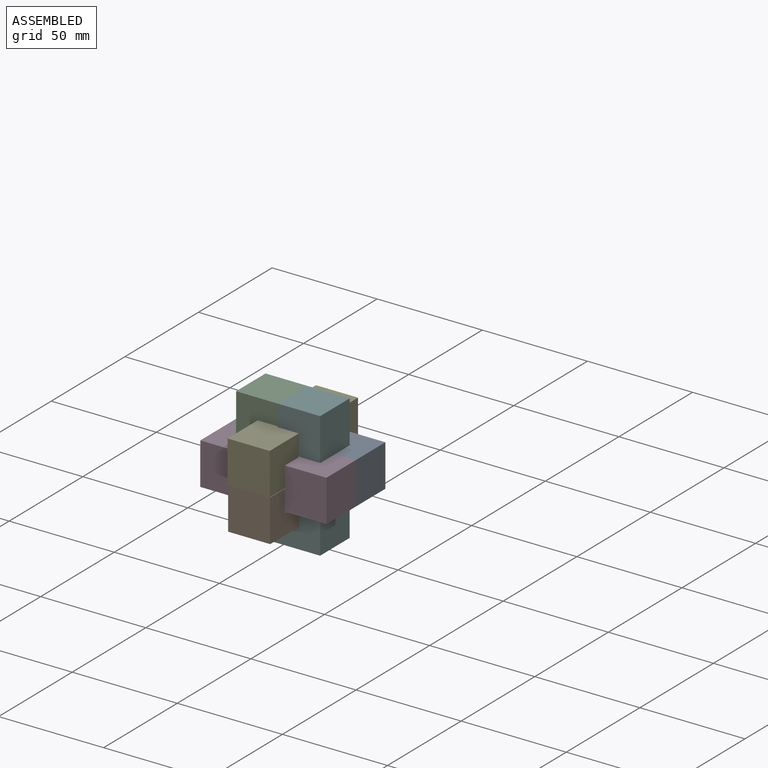
[diagram: assembled view]
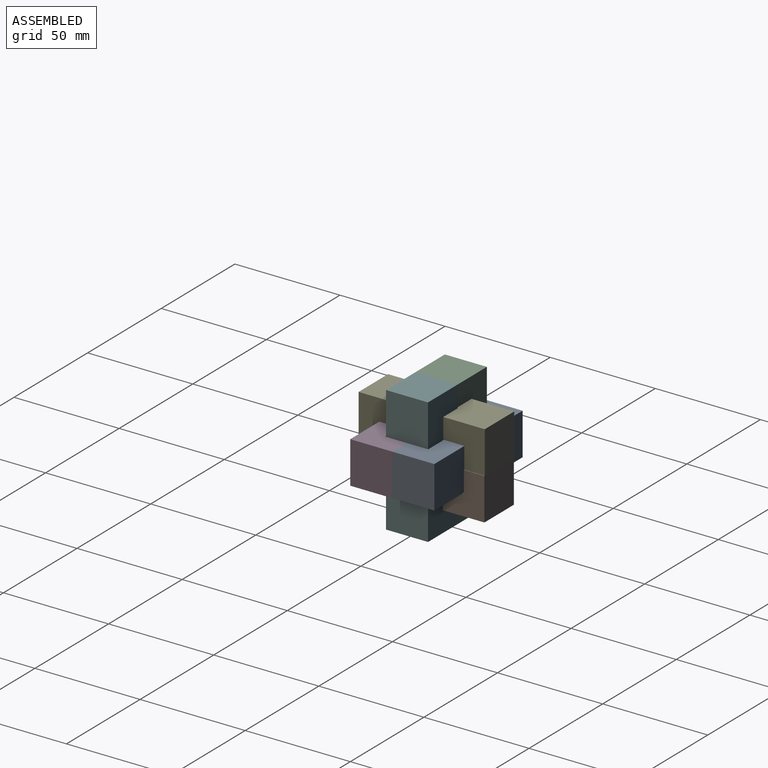
[diagram: assembled view, second angle]
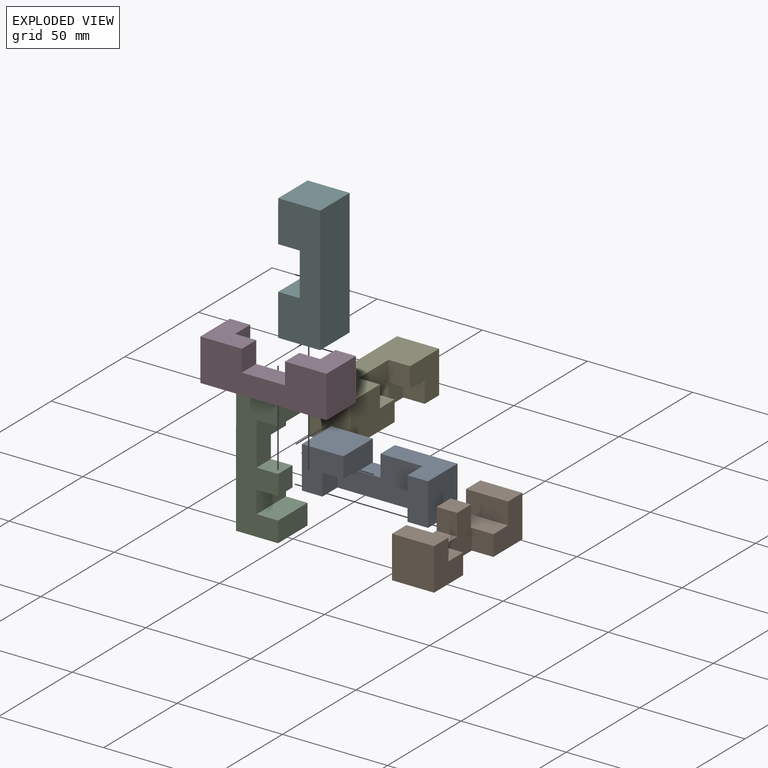
[diagram: exploded view]
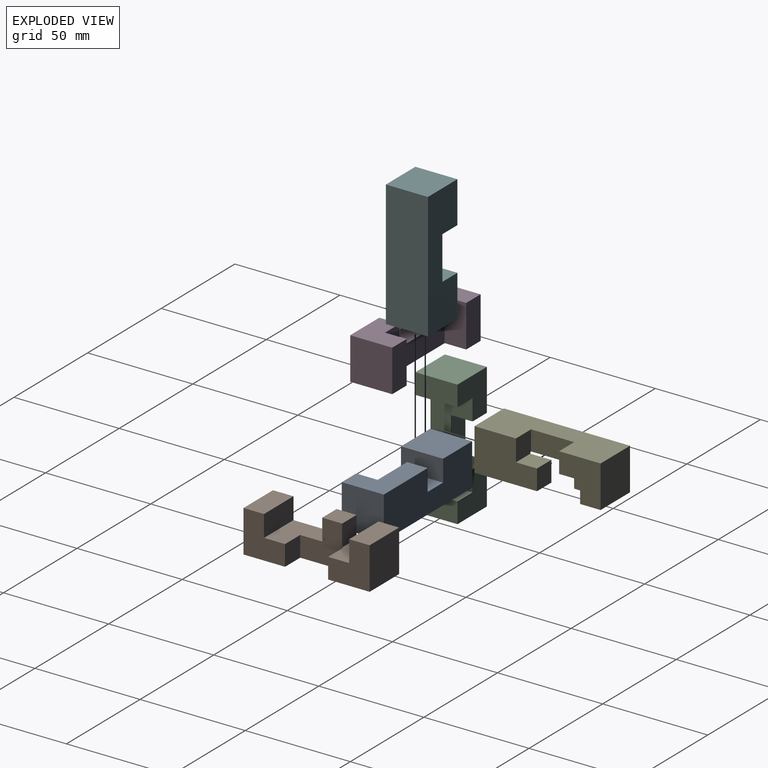
[diagram: exploded view, second angle]
ASSEMBLY  parts=6 mates=5
PART A: 15 faces, bbox 60x20x20 mm
  f0: plane 20x9.75mm, normal (0,0,1), area 195mm2, adj f1,f4,f5,f14
  f1: plane 29.75x20mm, normal (0,-1,0), area 390mm2, adj f0,f5,f6,f9,f13,f14
  f2: plane 20x19.75mm, normal (0,-1,0), area 395mm2, adj f3,f6,f7,f11
  f3: plane 20x20mm, normal (1,0,0), area 400mm2, adj f2,f4,f6,f7
  f4: plane 60x20mm, normal (0,1,0), area 784.9mm2, adj f0,f3,f5,f6,f7,f10,f13,f14
  f5: plane 20x20mm, normal (-1,0,0), area 400mm2, adj f0,f1,f4,f6
  f6: plane 60x20mm, normal (0,0,-1), area 1092.4mm2, adj f1,f2,f3,f4,f5,f9,f11,f12
  f7: plane 20x19.75mm, normal (0,0,1), area 292.5mm2, adj f2,f3,f4,f8,f10,f11
  f8: plane 10.25x10mm, normal (0,1,0), area 102.5mm2, adj f7,f10,f11,f13
  f9: plane 10.25x9.75mm, normal (1,0,0), area 99.9mm2, adj f1,f6,f12,f13
  f10: plane 10.25x10.25mm, normal (-1,0,0), area 105.1mm2, adj f4,f7,f8,f13
  f11: plane 20x10.25mm, normal (-1,0,0), area 199.9mm2, adj f2,f6,f7,f8,f12,f13
  f12: plane 10.5x9.75mm, normal (0,-1,0), area 102.4mm2, adj f6,f9,f11,f13
  f13: plane 40.5x20mm, normal (0,0,1), area 604.9mm2, adj f1,f4,f8,f9,f10,f11,f12,f14
  f14: plane 20x10.25mm, normal (1,0,0), area 205mm2, adj f0,f1,f4,f13
PART B: 18 faces, bbox 60x20x20 mm
  f0: plane 20x9.75mm, normal (0,0,1), area 195mm2, adj f1,f5,f6,f17
  f1: plane 60x20mm, normal (0,-1,0), area 882.3mm2, adj f0,f3,f4,f6,f7,f8,f9,f12
  f2: plane 20x19.75mm, normal (0,1,0), area 292.5mm2, adj f4,f7,f8,f9,f11,f12
  f3: plane 9.75x9.5mm, normal (0,0,1), area 92.6mm2, adj f1,f13,f14,f15
  f4: plane 20x20mm, normal (1,0,0), area 400mm2, adj f1,f2,f7,f8
  f5: plane 20x19.75mm, normal (0,1,0), area 292.5mm2, adj f0,f6,f7,f10,f16,f17
  f6: plane 20x20mm, normal (-1,0,0), area 400mm2, adj f0,f1,f5,f7
  f7: plane 60x20mm, normal (0,0,-1), area 989.9mm2, adj f1,f2,f4,f5,f6,f10,f11,f14
  f8: plane 20x9.75mm, normal (0,0,1), area 195mm2, adj f1,f2,f4,f9
  f9: plane 20x10.25mm, normal (-1,0,0), area 205mm2, adj f1,f2,f8,f12
  f10: plane 10.25x9.75mm, normal (1,0,0), area 99.9mm2, adj f5,f7,f14,f16
  f11: plane 10.25x9.75mm, normal (-1,0,0), area 99.9mm2, adj f2,f7,f12,f14
  f12: plane 20.5x20mm, normal (0,0,1), area 302.4mm2, adj f1,f2,f9,f11,f13,f14
  f13: plane 10.25x9.75mm, normal (1,0,0), area 99.9mm2, adj f1,f3,f12,f14
  f14: plane 20.5x20mm, normal (0,1,0), area 297.2mm2, adj f3,f7,f10,f11,f12,f13,f15,f16
  f15: plane 10.25x9.75mm, normal (-1,0,0), area 99.9mm2, adj f1,f3,f14,f16
  f16: plane 20x10.5mm, normal (0,0,1), area 204.9mm2, adj f1,f5,f10,f14,f15,f17
  f17: plane 20x10.25mm, normal (1,0,0), area 205mm2, adj f0,f1,f5,f16
PART C: 18 faces, bbox 60x20x20 mm
  f0: plane 20x9.75mm, normal (0,0,1), area 195mm2, adj f1,f5,f6,f17
  f1: plane 60x20mm, normal (0,-1,0), area 882.3mm2, adj f0,f3,f4,f6,f7,f8,f11,f12
  f2: plane 20x19.75mm, normal (0,1,0), area 292.5mm2, adj f4,f7,f8,f9,f14,f16
  f3: plane 9.75x9.5mm, normal (0,0,1), area 92.6mm2, adj f1,f11,f12,f13
  f4: plane 20x20mm, normal (1,0,0), area 400mm2, adj f1,f2,f7,f8
  f5: plane 20x19.75mm, normal (0,1,0), area 292.5mm2, adj f0,f6,f7,f10,f15,f17
  f6: plane 20x20mm, normal (-1,0,0), area 400mm2, adj f0,f1,f5,f7
  f7: plane 60x20mm, normal (0,0,-1), area 989.9mm2, adj f1,f2,f4,f5,f6,f9,f10,f13
  f8: plane 20x9.75mm, normal (0,0,1), area 195mm2, adj f1,f2,f4,f14
  f9: plane 10.25x9.75mm, normal (-1,0,0), area 99.9mm2, adj f2,f7,f13,f16
  f10: plane 10.25x9.75mm, normal (1,0,0), area 99.9mm2, adj f5,f7,f13,f15
  f11: plane 10.25x9.75mm, normal (1,0,0), area 99.9mm2, adj f1,f3,f13,f16
  f12: plane 10.25x9.75mm, normal (-1,0,0), area 99.9mm2, adj f1,f3,f13,f15
  f13: plane 20.5x20mm, normal (0,1,0), area 297.3mm2, adj f3,f7,f9,f10,f11,f12,f15,f16
  f14: plane 20x10.25mm, normal (-1,0,0), area 205mm2, adj f1,f2,f8,f16
  f15: plane 20.5x20mm, normal (0,0,1), area 302.4mm2, adj f1,f5,f10,f12,f13,f17
  f16: plane 20x10.5mm, normal (0,0,1), area 204.9mm2, adj f1,f2,f9,f11,f13,f14
  f17: plane 20x10.25mm, normal (1,0,0), area 205mm2, adj f0,f1,f5,f15
PART D: 14 faces, bbox 60x20x20 mm
  f0: plane 20x9.75mm, normal (0,0,1), area 195mm2, adj f1,f4,f5,f13
  f1: plane 60x20mm, normal (0,-1,0), area 784.9mm2, adj f0,f3,f5,f6,f7,f10,f12,f13
  f2: plane 20x19.75mm, normal (0,1,0), area 292.5mm2, adj f3,f6,f7,f8,f10,f12
  f3: plane 20x20mm, normal (1,0,0), area 400mm2, adj f1,f2,f6,f7
  f4: plane 20x19.75mm, normal (0,1,0), area 292.5mm2, adj f0,f5,f6,f9,f12,f13
  f5: plane 20x20mm, normal (-1,0,0), area 400mm2, adj f0,f1,f4,f6
  f6: plane 60x20mm, normal (0,0,-1), area 989.9mm2, adj f1,f2,f3,f4,f5,f8,f9,f11
  f7: plane 20x9.75mm, normal (0,0,1), area 195mm2, adj f1,f2,f3,f10
  f8: plane 10.25x9.75mm, normal (-1,0,0), area 99.9mm2, adj f2,f6,f11,f12
  f9: plane 10.25x9.75mm, normal (1,0,0), area 99.9mm2, adj f4,f6,f11,f12
  f10: plane 20x10.25mm, normal (-1,0,0), area 205mm2, adj f1,f2,f7,f12
  f11: plane 20.5x9.75mm, normal (0,1,0), area 199.9mm2, adj f6,f8,f9,f12
  f12: plane 40.5x20mm, normal (0,0,1), area 599.9mm2, adj f1,f2,f4,f8,f9,f10,f11,f13
  f13: plane 20x10.25mm, normal (1,0,0), area 205mm2, adj f0,f1,f4,f12
PART E: 19 faces, bbox 60x20x20 mm
  f0: plane 60x20mm, normal (0,-1,0), area 879.8mm2, adj f2,f3,f5,f6,f7,f11,f13,f16
  f1: plane 20x19.75mm, normal (0,1,0), area 292.5mm2, adj f3,f6,f7,f10,f11,f14
  f2: plane 29.75x20mm, normal (0,0,1), area 390mm2, adj f0,f4,f5,f12,f16,f17
  f3: plane 20x20mm, normal (1,0,0), area 400mm2, adj f0,f1,f6,f7
  f4: plane 29.75x20mm, normal (0,1,0), area 492.5mm2, adj f2,f5,f6,f9,f12,f18
  f5: plane 20x20mm, normal (-1,0,0), area 400mm2, adj f0,f2,f4,f6
  f6: plane 60x20mm, normal (0,0,-1), area 989.9mm2, adj f0,f1,f3,f4,f5,f11,f15,f18
  f7: plane 20x19.75mm, normal (0,0,1), area 292.5mm2, adj f0,f1,f3,f8,f11,f14
  f8: plane 10.25x10mm, normal (0,1,0), area 102.5mm2, adj f7,f10,f11,f14
  f9: plane 10x9.75mm, normal (0,0,-1), area 97.5mm2, adj f4,f12,f17,f18
  f10: plane 10.25x10mm, normal (0,0,1), area 102.5mm2, adj f1,f8,f11,f14
  f11: plane 20x20mm, normal (-1,0,0), area 202.3mm2, adj f0,f1,f6,f7,f8,f10,f13,f15
  f12: plane 9.75x9.75mm, normal (1,0,0), area 95.1mm2, adj f2,f4,f9,f17
  f13: plane 30.5x10.25mm, normal (0,0,1), area 302.4mm2, adj f0,f11,f15,f16,f17,f18
  f14: plane 10.25x10.25mm, normal (-1,0,0), area 105.1mm2, adj f1,f7,f8,f10
  f15: plane 20.5x9.5mm, normal (0,1,0), area 194.7mm2, adj f6,f11,f13,f18
  f16: plane 10.5x10.25mm, normal (1,0,0), area 107.6mm2, adj f0,f2,f13,f17
  f17: plane 20x10.5mm, normal (0,-1,0), area 202.5mm2, adj f2,f9,f12,f13,f16,f18
  f18: plane 10.25x10.25mm, normal (1,0,0), area 104.7mm2, adj f4,f6,f9,f13,f15,f17
PART F: 10 faces, bbox 60x20x20 mm
  f0: plane 60x20mm, normal (0,-1,0), area 989.9mm2, adj f1,f3,f4,f5,f6,f7,f8,f9
  f1: plane 20x20mm, normal (1,0,0), area 400mm2, adj f0,f2,f4,f5
  f2: plane 60x20mm, normal (0,1,0), area 989.9mm2, adj f1,f3,f4,f5,f6,f7,f8,f9
  f3: plane 20x20mm, normal (-1,0,0), area 400mm2, adj f0,f2,f4,f6
  f4: plane 60x20mm, normal (0,0,-1), area 1200mm2, adj f0,f1,f2,f3
  f5: plane 20x19.75mm, normal (0,0,1), area 395mm2, adj f0,f1,f2,f8
  f6: plane 20x19.75mm, normal (0,0,1), area 395mm2, adj f0,f2,f3,f7
  f7: plane 20x10.25mm, normal (1,0,0), area 205mm2, adj f0,f2,f6,f9
  f8: plane 20x10.25mm, normal (-1,0,0), area 205mm2, adj f0,f2,f5,f9
  f9: plane 20.5x20mm, normal (0,0,1), area 410mm2, adj f0,f2,f7,f8
PLACE A rot(axis=(0,-0.71,0.71),180deg) t=(719.51,10.6,-0.14)mm
PLACE B rot(axis=(0,0,-1),90deg) t=(-30.24,720.6,-9.86)mm
PLACE C rot(axis=(0,1,0),90deg) t=(-10.22,-59.4,720.13)mm fixed
PLACE D rot(axis=(0,-0.71,-0.71),180deg) t=(719.48,-9.4,-90.14)mm
PLACE E rot(axis=(-0.71,-0.71,0),180deg) t=(-120.48,-599.4,10.17)mm
PLACE F rot(axis=(-0.71,0,0.71),180deg) t=(9.78,120.6,720.13)mm
MATE slider C.f3 <-> B.f14  axis (1,0,0) through (-0.49,0.6,-9.87)mm
MATE slider C.f7 <-> A.f3  axis (-1,0,0) through (-20.48,0.6,10.14)mm
MATE slider C.f6 <-> F.f3  axis (0,0,1) through (-0.47,-9.4,30.13)mm
MATE slider C.f1 <-> E.f5  axis (0,-1,0) through (-10.48,-9.4,20.13)mm
MATE slider C.f6 <-> D.f2  axis (0,0,1) through (-20.47,-9.4,30.14)mm
